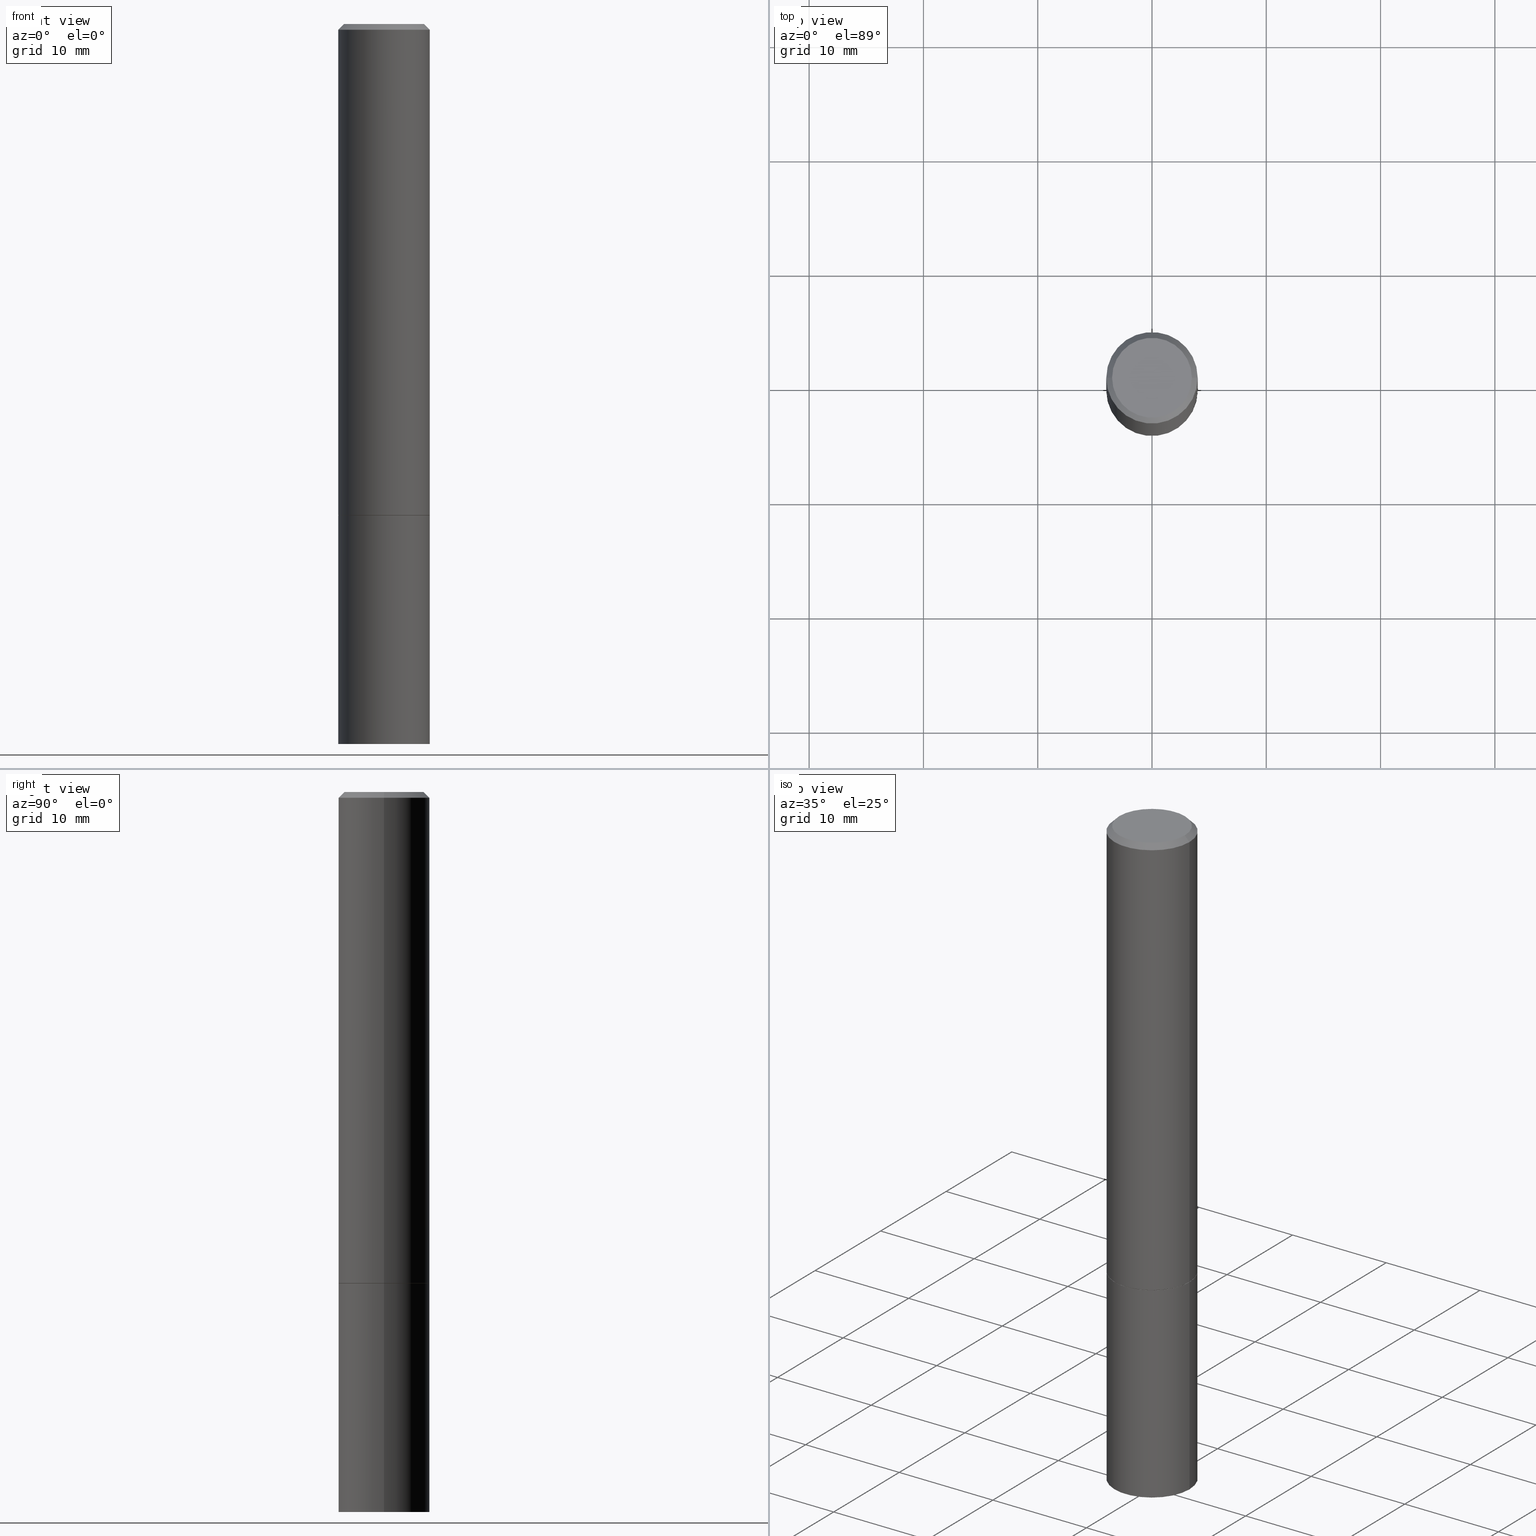
[diagram: canonical four-view strip — front | top / right | iso, engineering-drawing reading convention]
A machine part, canonical four-view strip (front | top / right | iso — engineering-drawing reading convention). The complete STEP part file that produces these views, byte-faithful:
ISO-10303-21;
HEADER;
FILE_DESCRIPTION (( 'STEP AP203' ),
    '1' );
FILE_NAME ('40149.STEP',
    '2024-02-28T01:34:43',
    ( '' ),
    ( '' ),
    'SwSTEP 2.0',
    'SolidWorks 2023',
    '' );
FILE_SCHEMA (( 'CONFIG_CONTROL_DESIGN' ));
ENDSEC;

DATA;
#1 = APPROVAL_STATUS ( 'not_yet_approved' ) ;
#2 = ORIENTED_EDGE ( 'NONE', *, *, #194, .T. ) ;
#3 = UNCERTAINTY_MEASURE_WITH_UNIT (LENGTH_MEASURE( 1.000000000000000082E-05 ), #204, 'distance_accuracy_value', 'NONE');
#4 = CALENDAR_DATE ( 2024, 27, 2 ) ;
#5 = CARTESIAN_POINT ( 'NONE',  ( 0.1575000000000000011, -1.099816621735586889E-15, 7.679978421878598033E-30 ) ) ;
#6 = VECTOR ( 'NONE', #268, 39.37007874015748143 ) ;
#7 = AXIS2_PLACEMENT_3D ( 'NONE', #323, #81, #192 ) ;
#8 = PRODUCT_DEFINITION ( 'UNKNOWN', '', #345, #91 ) ;
#9 = DIMENSIONAL_EXPONENTS ( 1.000000000000000000, 0.000000000000000000, 0.000000000000000000, 0.000000000000000000, 0.000000000000000000, 0.000000000000000000, 0.000000000000000000 ) ;
#10 = CARTESIAN_POINT ( 'NONE',  ( 4.139934141990818918E-29, -5.910728758527562653E-15, -1.692900000000000293 ) ) ;
#11 = CALENDAR_DATE ( 2024, 27, 2 ) ;
#12 = PLANE ( 'NONE',  #144 ) ;
#13 = PERSON_AND_ORGANIZATION_ROLE ( 'design_supplier' ) ;
#14 = EDGE_CURVE ( 'NONE', #90, #154, #68, .T. ) ;
#15 = DIRECTION ( 'NONE',  ( 1.000000000000000000, -6.982962677686267499E-15, 0.000000000000000000 ) ) ;
#16 = VECTOR ( 'NONE', #173, 39.37007874015748143 ) ;
#17 = CARTESIAN_POINT ( 'NONE',  ( 6.065496279980994755E-29, -8.659921164732655335E-15, -2.480300000000000171 ) ) ;
#18 = CARTESIAN_POINT ( 'NONE',  ( -0.1575000000000000011, -6.166220152807950602E-15, -2.480300000000000171 ) ) ;
#19 = ADVANCED_FACE ( 'NONE', ( #216 ), #242, .T. ) ;
#20 = DIRECTION ( 'NONE',  ( 1.000000000000000000, -6.982962677686268288E-15, 0.000000000000000000 ) ) ;
#21 = AXIS2_PLACEMENT_3D ( 'NONE', #22, #83, #171 ) ;
#22 = CARTESIAN_POINT ( 'NONE',  ( 4.890937612370275786E-31, -6.982962677686296539E-17, -0.02000000000000001429 ) ) ;
#23 = DIRECTION ( 'NONE',  ( 1.000000000000000000, -6.982962677686267499E-15, 0.000000000000000000 ) ) ;
#24 = DIRECTION ( 'NONE',  ( -2.445468806185136877E-29, 3.491481338843145188E-15, 1.000000000000000000 ) ) ;
#25 = CIRCLE ( 'NONE', #197, 0.1575000000000000011 ) ;
#26 =( NAMED_UNIT ( * ) SI_UNIT ( $, .STERADIAN. ) SOLID_ANGLE_UNIT ( ) );
#27 = CIRCLE ( 'NONE', #318, 0.1575000000000000011 ) ;
#28 = ORIENTED_EDGE ( 'NONE', *, *, #45, .T. ) ;
#29 = ORIENTED_EDGE ( 'NONE', *, *, #336, .T. ) ;
#30 = CC_DESIGN_PERSON_AND_ORGANIZATION_ASSIGNMENT ( #162, #13, ( #345 ) ) ;
#31 = DIRECTION ( 'NONE',  ( -2.445468806185136597E-29, 3.491481338843145583E-15, 1.000000000000000000 ) ) ;
#32 = VECTOR ( 'NONE', #106, 39.37007874015748143 ) ;
#33 = ORIENTED_EDGE ( 'NONE', *, *, #157, .T. ) ;
#34 = CIRCLE ( 'NONE', #140, 0.1565000000000000002 ) ;
#35 =( NAMED_UNIT ( * ) PLANE_ANGLE_UNIT ( ) SI_UNIT ( $, .RADIAN. ) );
#36 = ORIENTED_EDGE ( 'NONE', *, *, #266, .F. ) ;
#37 = COORDINATED_UNIVERSAL_TIME_OFFSET ( 5, 0, .BEHIND. ) ;
#38 = CARTESIAN_POINT ( 'NONE',  ( 0.000000000000000000, 0.000000000000000000, 0.000000000000000000 ) ) ;
#39 = EDGE_CURVE ( 'NONE', #175, #288, #79, .T. ) ;
#40 = APPLICATION_PROTOCOL_DEFINITION ( 'international standard', 'config_control_design', 1994, #254 ) ;
#41 = DIRECTION ( 'NONE',  ( -2.445468806185136597E-29, 3.491481338843145583E-15, 1.000000000000000000 ) ) ;
#42 = AXIS2_PLACEMENT_3D ( 'NONE', #130, #165, #319 ) ;
#43 = COORDINATED_UNIVERSAL_TIME_OFFSET ( 5, 0, .BEHIND. ) ;
#44 = DIRECTION ( 'NONE',  ( -1.000000000000000000, 6.982962677686265922E-15, -4.876176775795935793E-29 ) ) ;
#45 = EDGE_CURVE ( 'NONE', #259, #361, #107, .T. ) ;
#46 = DATE_TIME_ROLE ( 'creation_date' ) ;
#47 = DIRECTION ( 'NONE',  ( 2.438088387897960049E-29, -3.491481338843145188E-15, -1.000000000000000000 ) ) ;
#48 = MECHANICAL_CONTEXT ( 'NONE', #236, 'mechanical' ) ;
#49 = DIRECTION ( 'NONE',  ( -2.445468806185136597E-29, 3.491481338843145583E-15, 1.000000000000000000 ) ) ;
#50 = CONICAL_SURFACE ( 'NONE', #42, 0.1574999999999998346, 0.7853981633974477239 ) ;
#51 = LOCAL_TIME ( 20, 34, 43.00000000000000000, #269 ) ;
#52 = CARTESIAN_POINT ( 'NONE',  ( 4.139934141990818918E-29, -5.910728758527562653E-15, -1.692900000000000293 ) ) ;
#53 = EDGE_CURVE ( 'NONE', #259, #281, #25, .T. ) ;
#54 = CYLINDRICAL_SURFACE ( 'NONE', #70, 0.1574999999999998901 ) ;
#55 = APPROVAL_STATUS ( 'not_yet_approved' ) ;
#56 = CARTESIAN_POINT ( 'NONE',  ( 0.1575000000000000011, -7.010545380263150133E-15, -1.692900000000000293 ) ) ;
#57 = DIRECTION ( 'NONE',  ( 1.000000000000000000, -6.982962677686268288E-15, 0.000000000000000000 ) ) ;
#58 = EDGE_LOOP ( 'NONE', ( #255, #94, #284, #351 ) ) ;
#59 = ADVANCED_FACE ( 'NONE', ( #294 ), #265, .T. ) ;
#60 = CARTESIAN_POINT ( 'NONE',  ( 0.1574999999999998346, -1.150358061425877894E-15, -0.02000000000000001429 ) ) ;
#61 = ORIENTED_EDGE ( 'NONE', *, *, #170, .F. ) ;
#62 = AXIS2_PLACEMENT_3D ( 'NONE', #270, #47, #317 ) ;
#63 = CONICAL_SURFACE ( 'NONE', #286, 0.1565000000000000002, 0.7853981633972775267 ) ;
#64 = ORIENTED_EDGE ( 'NONE', *, *, #86, .F. ) ;
#65 = EDGE_CURVE ( 'NONE', #149, #154, #313, .T. ) ;
#66 = ORIENTED_EDGE ( 'NONE', *, *, #129, .F. ) ;
#67 = EDGE_LOOP ( 'NONE', ( #119, #258, #206, #61 ) ) ;
#68 = CIRCLE ( 'NONE', #220, 0.1575000000000000011 ) ;
#69 = EDGE_LOOP ( 'NONE', ( #282, #2 ) ) ;
#70 = AXIS2_PLACEMENT_3D ( 'NONE', #247, #85, #110 ) ;
#71 = ADVANCED_FACE ( 'NONE', ( #295 ), #357, .T. ) ;
#72 = PERSON_AND_ORGANIZATION ( #360, #151 ) ;
#73 = DIRECTION ( 'NONE',  ( 2.445468806185136597E-29, -3.491481338843145583E-15, -1.000000000000000000 ) ) ;
#74 = PERSON_AND_ORGANIZATION ( #360, #151 ) ;
#75 = PLANE ( 'NONE',  #166 ) ;
#76 = APPROVAL_ROLE ( '' ) ;
#77 = FACE_OUTER_BOUND ( 'NONE', #234, .T. ) ;
#78 = DATE_AND_TIME ( #11, #87 ) ;
#79 = LINE ( 'NONE', #186, #6 ) ;
#80 = DIRECTION ( 'NONE',  ( 1.000000000000000000, -6.982962677686265922E-15, 0.000000000000000000 ) ) ;
#81 = DIRECTION ( 'NONE',  ( -2.445468806185136597E-29, 3.491481338843145583E-15, 1.000000000000000000 ) ) ;
#82 = ADVANCED_FACE ( 'NONE', ( #322 ), #290, .T. ) ;
#83 = DIRECTION ( 'NONE',  ( -2.445468806185136597E-29, 3.491481338843145583E-15, 1.000000000000000000 ) ) ;
#84 = CYLINDRICAL_SURFACE ( 'NONE', #263, 0.1575000000000000011 ) ;
#85 = DIRECTION ( 'NONE',  ( -2.445468806185136597E-29, 3.491481338843145583E-15, 1.000000000000000000 ) ) ;
#86 = EDGE_CURVE ( 'NONE', #120, #175, #285, .T. ) ;
#87 = LOCAL_TIME ( 20, 34, 43.00000000000000000, #321 ) ;
#88 =( LENGTH_UNIT ( ) NAMED_UNIT ( * ) SI_UNIT ( $, .METRE. ) );
#89 = ADVANCED_FACE ( 'NONE', ( #211 ), #12, .F. ) ;
#90 = VERTEX_POINT ( 'NONE', #292 ) ;
#91 = DESIGN_CONTEXT ( 'detailed design', #254, 'design' ) ;
#92 = CIRCLE ( 'NONE', #188, 0.1565000000000000002 ) ;
#93 = ORIENTED_EDGE ( 'NONE', *, *, #108, .T. ) ;
#94 = ORIENTED_EDGE ( 'NONE', *, *, #218, .T. ) ;
#95 = EDGE_LOOP ( 'NONE', ( #66, #366 ) ) ;
#96 = PRODUCT_RELATED_PRODUCT_CATEGORY ( 'detail', '', ( #279 ) ) ;
#97 = EDGE_LOOP ( 'NONE', ( #332, #222 ) ) ;
#98 = LOCAL_TIME ( 20, 34, 43.00000000000000000, #37 ) ;
#99 = DIRECTION ( 'NONE',  ( 1.000000000000000000, 0.000000000000000000, 0.000000000000000000 ) ) ;
#100 = CARTESIAN_POINT ( 'NONE',  ( -0.1565000000000000002, -4.798729377063006057E-15, -1.692900000000000293 ) ) ;
#101 = ADVANCED_FACE ( 'NONE', ( #163 ), #329, .T. ) ;
#102 = CARTESIAN_POINT ( 'NONE',  ( 1.099816621735628304E-15, 0.1574999999999940892, -1.692900000000000960 ) ) ;
#103 = APPROVAL_DATE_TIME ( #291, #190 ) ;
#104 = DIRECTION ( 'NONE',  ( -2.445468806185136597E-29, 3.491481338843145583E-15, 1.000000000000000000 ) ) ;
#105 = CC_DESIGN_APPROVAL ( #174, ( #8 ) ) ;
#106 = DIRECTION ( 'NONE',  ( -0.7071067811864267805, 7.493145998869918709E-15, 0.7071067811866682540 ) ) ;
#107 = LINE ( 'NONE', #5, #150 ) ;
#108 = EDGE_CURVE ( 'NONE', #123, #288, #181, .T. ) ;
#109 = ADVANCED_BREP_SHAPE_REPRESENTATION ( '40149', ( #320, #215, #121 ), #276 ) ;
#110 = DIRECTION ( 'NONE',  ( 1.000000000000000000, -6.982962677686266711E-15, 4.876176775795935793E-29 ) ) ;
#111 = APPROVAL_PERSON_ORGANIZATION ( #185, #190, #316 ) ;
#112 = CARTESIAN_POINT ( 'NONE',  ( -0.1575000000000000011, 1.119104808822157801E-15, -7.747322767151475583E-30 ) ) ;
#113 = DIRECTION ( 'NONE',  ( 1.000000000000000000, -6.982962677686265922E-15, 4.876176775795935793E-29 ) ) ;
#114 = ADVANCED_FACE ( 'NONE', ( #77 ), #50, .T. ) ;
#115 = CARTESIAN_POINT ( 'NONE',  ( -0.1565000000000000002, -4.793430922714782866E-15, -1.692900000000000293 ) ) ;
#116 = AXIS2_PLACEMENT_3D ( 'NONE', #38, #137, #156 ) ;
#117 = LOCAL_TIME ( 20, 34, 43.00000000000000000, #43 ) ;
#118 = ADVANCED_FACE ( 'NONE', ( #243 ), #75, .F. ) ;
#119 = ORIENTED_EDGE ( 'NONE', *, *, #14, .T. ) ;
#120 = VERTEX_POINT ( 'NONE', #161 ) ;
#121 = AXIS2_PLACEMENT_3D ( 'NONE', #127, #267, #99 ) ;
#122 = VERTEX_POINT ( 'NONE', #133 ) ;
#123 = VERTEX_POINT ( 'NONE', #240 ) ;
#124 = APPROVAL ( #55, 'UNSPECIFIED' ) ;
#125 = APPROVAL_DATE_TIME ( #343, #174 ) ;
#126 = ORIENTED_EDGE ( 'NONE', *, *, #65, .T. ) ;
#127 = CARTESIAN_POINT ( 'NONE',  ( 0.000000000000000000, 0.000000000000000000, 0.000000000000000000 ) ) ;
#128 = CARTESIAN_POINT ( 'NONE',  ( 4.890937612370275786E-31, -6.982962677686296539E-17, -0.02000000000000001429 ) ) ;
#129 = EDGE_CURVE ( 'NONE', #148, #149, #92, .T. ) ;
#130 = CARTESIAN_POINT ( 'NONE',  ( 4.890937612370275786E-31, -6.982962677686296539E-17, -0.02000000000000001429 ) ) ;
#131 = SHAPE_DEFINITION_REPRESENTATION ( #226, #109 ) ;
#132 = APPROVAL_STATUS ( 'not_yet_approved' ) ;
#133 = CARTESIAN_POINT ( 'NONE',  ( -0.1575000000000000011, -6.166220152807950602E-15, -1.692900000000000293 ) ) ;
#134 = SECURITY_CLASSIFICATION_LEVEL ( 'unclassified' ) ;
#135 = CARTESIAN_POINT ( 'NONE',  ( 4.890937612370275786E-31, -6.982962677686296539E-17, -0.02000000000000001429 ) ) ;
#136 = VECTOR ( 'NONE', #24, 39.37007874015748143 ) ;
#137 = DIRECTION ( 'NONE',  ( -2.445468806185136597E-29, 3.491481338843145583E-15, 1.000000000000000000 ) ) ;
#138 = DIRECTION ( 'NONE',  ( -2.445468806185136597E-29, 3.491481338843145583E-15, 1.000000000000000000 ) ) ;
#139 = DIRECTION ( 'NONE',  ( 1.000000000000000000, -6.982962677686261977E-15, 0.000000000000000000 ) ) ;
#140 = AXIS2_PLACEMENT_3D ( 'NONE', #52, #138, #168 ) ;
#141 = FACE_OUTER_BOUND ( 'NONE', #95, .T. ) ;
#142 = DIRECTION ( 'NONE',  ( -2.445468806185136597E-29, 3.491481338843145583E-15, 1.000000000000000000 ) ) ;
#143 = CARTESIAN_POINT ( 'NONE',  ( -0.1574999999999998901, 1.119104808822157012E-15, -7.747322767151471379E-30 ) ) ;
#144 = AXIS2_PLACEMENT_3D ( 'NONE', #102, #235, #212 ) ;
#145 = CC_DESIGN_SECURITY_CLASSIFICATION ( #354, ( #345 ) ) ;
#146 = ORIENTED_EDGE ( 'NONE', *, *, #45, .F. ) ;
#147 = EDGE_CURVE ( 'NONE', #148, #90, #297, .T. ) ;
#148 = VERTEX_POINT ( 'NONE', #250 ) ;
#149 = VERTEX_POINT ( 'NONE', #115 ) ;
#150 = VECTOR ( 'NONE', #262, 39.37007874015748143 ) ;
#151 = ORGANIZATION ( 'UNSPECIFIED', 'UNSPECIFIED', '' ) ;
#152 = EDGE_CURVE ( 'NONE', #120, #123, #172, .T. ) ;
#153 = EDGE_LOOP ( 'NONE', ( #228, #177, #200, #363 ) ) ;
#154 = VERTEX_POINT ( 'NONE', #275 ) ;
#155 = DATE_TIME_ROLE ( 'classification_date' ) ;
#156 = DIRECTION ( 'NONE',  ( 1.000000000000000000, -6.982962677686265922E-15, 4.876176775795935232E-29 ) ) ;
#157 = EDGE_CURVE ( 'NONE', #281, #259, #27, .T. ) ;
#158 = AXIS2_PLACEMENT_3D ( 'NONE', #214, #41, #342 ) ;
#159 = DIRECTION ( 'NONE',  ( -2.445468806185136597E-29, 3.491481338843145583E-15, 1.000000000000000000 ) ) ;
#160 = PERSON_AND_ORGANIZATION ( #360, #151 ) ;
#161 = CARTESIAN_POINT ( 'NONE',  ( -0.1374999999999998446, 9.950721815702915469E-16, 4.268512490093574228E-18 ) ) ;
#162 = PERSON_AND_ORGANIZATION ( #360, #151 ) ;
#163 = FACE_OUTER_BOUND ( 'NONE', #202, .T. ) ;
#164 = CC_DESIGN_PERSON_AND_ORGANIZATION_ASSIGNMENT ( #261, #289, ( #354 ) ) ;
#165 = DIRECTION ( 'NONE',  ( 2.445468806185136597E-29, -3.491481338843145583E-15, -1.000000000000000000 ) ) ;
#166 = AXIS2_PLACEMENT_3D ( 'NONE', #191, #341, #44 ) ;
#167 = APPROVAL_PERSON_ORGANIZATION ( #264, #124, #225 ) ;
#168 = DIRECTION ( 'NONE',  ( 1.000000000000000000, -6.982962677686267499E-15, 0.000000000000000000 ) ) ;
#169 = CARTESIAN_POINT ( 'NONE',  ( 0.1575000000000000011, -9.759737786468242027E-15, -2.480300000000000171 ) ) ;
#170 = EDGE_CURVE ( 'NONE', #90, #288, #358, .T. ) ;
#171 = DIRECTION ( 'NONE',  ( 1.000000000000000000, -6.982962677686265922E-15, 0.000000000000000000 ) ) ;
#172 = LINE ( 'NONE', #245, #365 ) ;
#173 = DIRECTION ( 'NONE',  ( 0.7071067811864267805, -2.468850131080992517E-15, 0.7071067811866682540 ) ) ;
#174 = APPROVAL ( #1, 'UNSPECIFIED' ) ;
#175 = VERTEX_POINT ( 'NONE', #303 ) ;
#176 = CLOSED_SHELL ( 'NONE', ( #227, #59, #89, #82 ) ) ;
#177 = ORIENTED_EDGE ( 'NONE', *, *, #239, .T. ) ;
#178 = ORIENTED_EDGE ( 'NONE', *, *, #339, .T. ) ;
#179 = EDGE_CURVE ( 'NONE', #154, #123, #193, .T. ) ;
#180 = ORIENTED_EDGE ( 'NONE', *, *, #53, .F. ) ;
#181 = CIRCLE ( 'NONE', #201, 0.1574999999999998346 ) ;
#182 = ORIENTED_EDGE ( 'NONE', *, *, #147, .F. ) ;
#183 = PERSON_AND_ORGANIZATION_ROLE ( 'creator' ) ;
#184 = DIRECTION ( 'NONE',  ( -1.000000000000000000, 6.982962677686265922E-15, 0.000000000000000000 ) ) ;
#185 = PERSON_AND_ORGANIZATION ( #360, #151 ) ;
#186 = CARTESIAN_POINT ( 'NONE',  ( 0.1574999999999998346, -1.150358061425877894E-15, -0.02000000000000001429 ) ) ;
#187 = CARTESIAN_POINT ( 'NONE',  ( 0.000000000000000000, 0.000000000000000000, 0.000000000000000000 ) ) ;
#188 = AXIS2_PLACEMENT_3D ( 'NONE', #344, #104, #189 ) ;
#189 = DIRECTION ( 'NONE',  ( 1.000000000000000000, -6.982962677686267499E-15, 0.000000000000000000 ) ) ;
#190 = APPROVAL ( #132, 'UNSPECIFIED' ) ;
#191 = CARTESIAN_POINT ( 'NONE',  ( 9.601573681818602922E-16, 0.1374999999999998446, -4.779444278458817077E-16 ) ) ;
#192 = DIRECTION ( 'NONE',  ( 1.000000000000000000, -6.982962677686268288E-15, 0.000000000000000000 ) ) ;
#193 = LINE ( 'NONE', #143, #364 ) ;
#194 = EDGE_CURVE ( 'NONE', #122, #361, #331, .T. ) ;
#195 = CARTESIAN_POINT ( 'NONE',  ( 0.1574999999999998901, -1.099816621735586297E-15, 7.679978421878593829E-30 ) ) ;
#196 = CARTESIAN_POINT ( 'NONE',  ( 4.139934141990818918E-29, -5.910728758527562653E-15, -1.692900000000000293 ) ) ;
#197 = AXIS2_PLACEMENT_3D ( 'NONE', #17, #347, #237 ) ;
#198 = CIRCLE ( 'NONE', #7, 0.1575000000000000011 ) ;
#199 = CARTESIAN_POINT ( 'NONE',  ( 4.139934141990818918E-29, -5.910728758527562653E-15, -1.692900000000000293 ) ) ;
#200 = ORIENTED_EDGE ( 'NONE', *, *, #147, .T. ) ;
#201 = AXIS2_PLACEMENT_3D ( 'NONE', #135, #315, #80 ) ;
#202 = EDGE_LOOP ( 'NONE', ( #229, #126, #311, #182 ) ) ;
#203 = CC_DESIGN_PERSON_AND_ORGANIZATION_ASSIGNMENT ( #72, #183, ( #345 ) ) ;
#204 =( CONVERSION_BASED_UNIT ( 'INCH', #362 ) LENGTH_UNIT ( ) NAMED_UNIT ( #9 ) );
#205 = ORIENTED_EDGE ( 'NONE', *, *, #314, .F. ) ;
#206 = ORIENTED_EDGE ( 'NONE', *, *, #339, .F. ) ;
#207 = AXIS2_PLACEMENT_3D ( 'NONE', #187, #159, #349 ) ;
#208 = LOCAL_TIME ( 20, 34, 43.00000000000000000, #277 ) ;
#209 = ORIENTED_EDGE ( 'NONE', *, *, #152, .F. ) ;
#210 = DATE_AND_TIME ( #4, #98 ) ;
#211 = FACE_OUTER_BOUND ( 'NONE', #69, .T. ) ;
#212 = DIRECTION ( 'NONE',  ( -1.000000000000000000, 6.982962677686265922E-15, -4.876176775795935793E-29 ) ) ;
#213 = AXIS2_PLACEMENT_3D ( 'NONE', #272, #330, #224 ) ;
#214 = CARTESIAN_POINT ( 'NONE',  ( -1.043851414335219820E-46, 1.490343170380447200E-32, 4.268512490100411279E-18 ) ) ;
#215 = MANIFOLD_SOLID_BREP ( 'Body-Move/Copy2[2]', #324 ) ;
#216 = FACE_OUTER_BOUND ( 'NONE', #67, .T. ) ;
#217 = DIRECTION ( 'NONE',  ( -2.445468806185136877E-29, 3.491481338843145188E-15, 1.000000000000000000 ) ) ;
#218 = EDGE_CURVE ( 'NONE', #154, #90, #198, .T. ) ;
#219 = LINE ( 'NONE', #112, #251 ) ;
#220 = AXIS2_PLACEMENT_3D ( 'NONE', #283, #31, #256 ) ;
#221 = AXIS2_PLACEMENT_3D ( 'NONE', #355, #328, #113 ) ;
#222 = ORIENTED_EDGE ( 'NONE', *, *, #266, .T. ) ;
#223 = DIRECTION ( 'NONE',  ( -2.445468806185136597E-29, 3.491481338843145583E-15, 1.000000000000000000 ) ) ;
#224 = DIRECTION ( 'NONE',  ( 1.000000000000000000, -6.982962677686265922E-15, 4.876173381029105647E-29 ) ) ;
#225 = APPROVAL_ROLE ( '' ) ;
#226 = PRODUCT_DEFINITION_SHAPE ( 'NONE', 'NONE',  #8 ) ;
#227 = ADVANCED_FACE ( 'NONE', ( #300 ), #84, .T. ) ;
#228 = ORIENTED_EDGE ( 'NONE', *, *, #65, .F. ) ;
#229 = ORIENTED_EDGE ( 'NONE', *, *, #129, .T. ) ;
#230 = CIRCLE ( 'NONE', #213, 0.1374999999999998446 ) ;
#231 = EDGE_LOOP ( 'NONE', ( #180, #337 ) ) ;
#232 = ORIENTED_EDGE ( 'NONE', *, *, #53, .T. ) ;
#233 = PERSON_AND_ORGANIZATION_ROLE ( 'design_owner' ) ;
#234 = EDGE_LOOP ( 'NONE', ( #36, #359, #178, #209 ) ) ;
#235 = DIRECTION ( 'NONE',  ( 2.438088387897960049E-29, -3.491481338843145188E-15, -1.000000000000000000 ) ) ;
#236 = APPLICATION_CONTEXT ( 'configuration controlled 3d designs of mechanical parts and assemblies' ) ;
#237 = DIRECTION ( 'NONE',  ( 1.000000000000000000, -6.982962677686261977E-15, 0.000000000000000000 ) ) ;
#238 = CALENDAR_DATE ( 2024, 27, 2 ) ;
#239 = EDGE_CURVE ( 'NONE', #149, #148, #34, .T. ) ;
#240 = CARTESIAN_POINT ( 'NONE',  ( -0.1574999999999998346, 1.029986994958722802E-15, -0.02000000000000001429 ) ) ;
#241 = AXIS2_PLACEMENT_3D ( 'NONE', #128, #73, #184 ) ;
#242 = CYLINDRICAL_SURFACE ( 'NONE', #207, 0.1574999999999998901 ) ;
#243 = FACE_OUTER_BOUND ( 'NONE', #97, .T. ) ;
#244 = CARTESIAN_POINT ( 'NONE',  ( 4.139934141990818918E-29, -5.910728758527562653E-15, -1.692900000000000293 ) ) ;
#245 = CARTESIAN_POINT ( 'NONE',  ( -0.1574999999999998346, 1.029986994958722802E-15, -0.02000000000000001429 ) ) ;
#246 = CIRCLE ( 'NONE', #304, 0.1575000000000000011 ) ;
#247 = CARTESIAN_POINT ( 'NONE',  ( 0.000000000000000000, 0.000000000000000000, 0.000000000000000000 ) ) ;
#248 = PLANE ( 'NONE',  #221 ) ;
#249 = CC_DESIGN_DATE_AND_TIME_ASSIGNMENT ( #78, #46, ( #8 ) ) ;
#250 = CARTESIAN_POINT ( 'NONE',  ( 0.1565000000000000002, -7.003562417585463330E-15, -1.692900000000000293 ) ) ;
#251 = VECTOR ( 'NONE', #326, 39.37007874015748143 ) ;
#252 = EDGE_LOOP ( 'NONE', ( #308, #64, #306, #93 ) ) ;
#253 = ADVANCED_FACE ( 'NONE', ( #141 ), #248, .F. ) ;
#254 = APPLICATION_CONTEXT ( 'configuration controlled 3d designs of mechanical parts and assemblies' ) ;
#255 = ORIENTED_EDGE ( 'NONE', *, *, #179, .F. ) ;
#256 = DIRECTION ( 'NONE',  ( 1.000000000000000000, -6.982962677686268288E-15, 0.000000000000000000 ) ) ;
#257 = APPROVAL_PERSON_ORGANIZATION ( #160, #174, #76 ) ;
#258 = ORIENTED_EDGE ( 'NONE', *, *, #179, .T. ) ;
#259 = VERTEX_POINT ( 'NONE', #169 ) ;
#260 = APPROVAL_DATE_TIME ( #273, #124 ) ;
#261 = PERSON_AND_ORGANIZATION ( #360, #151 ) ;
#262 = DIRECTION ( 'NONE',  ( -2.445468806185136877E-29, 3.491481338843145188E-15, 1.000000000000000000 ) ) ;
#263 = AXIS2_PLACEMENT_3D ( 'NONE', #327, #302, #278 ) ;
#264 = PERSON_AND_ORGANIZATION ( #360, #151 ) ;
#265 = PLANE ( 'NONE',  #62 ) ;
#266 = EDGE_CURVE ( 'NONE', #175, #120, #230, .T. ) ;
#267 = DIRECTION ( 'NONE',  ( 0.000000000000000000, 0.000000000000000000, 1.000000000000000000 ) ) ;
#268 = DIRECTION ( 'NONE',  ( 0.7071067811865471286, -7.319954787623254468E-15, -0.7071067811865479058 ) ) ;
#269 = COORDINATED_UNIVERSAL_TIME_OFFSET ( 5, 0, .BEHIND. ) ;
#270 = CARTESIAN_POINT ( 'NONE',  ( 1.099816621735647434E-15, 0.1574999999999913136, -2.480300000000001059 ) ) ;
#271 = CARTESIAN_POINT ( 'NONE',  ( 0.1565000000000000002, -7.003562417585463330E-15, -1.692900000000000293 ) ) ;
#272 = CARTESIAN_POINT ( 'NONE',  ( -1.043851414335219820E-46, 1.490343170380447200E-32, 4.268512490100411279E-18 ) ) ;
#273 = DATE_AND_TIME ( #325, #208 ) ;
#274 = FACE_OUTER_BOUND ( 'NONE', #58, .T. ) ;
#275 = CARTESIAN_POINT ( 'NONE',  ( -0.1575000000000000011, -1.869428643160630319E-15, -1.691899999999999959 ) ) ;
#276 =( GEOMETRIC_REPRESENTATION_CONTEXT ( 3 ) GLOBAL_UNCERTAINTY_ASSIGNED_CONTEXT ( ( #3 ) ) GLOBAL_UNIT_ASSIGNED_CONTEXT ( ( #204, #35, #26 ) ) REPRESENTATION_CONTEXT ( 'NONE', 'WORKASPACE' ) );
#277 = COORDINATED_UNIVERSAL_TIME_OFFSET ( 5, 0, .BEHIND. ) ;
#278 = DIRECTION ( 'NONE',  ( 1.000000000000000000, -6.982962677686265922E-15, 4.876176775795935232E-29 ) ) ;
#279 = PRODUCT ( '40149', '40149', '', ( #48 ) ) ;
#280 = CARTESIAN_POINT ( 'NONE',  ( 6.065496279980994755E-29, -8.659921164732655335E-15, -2.480300000000000171 ) ) ;
#281 = VERTEX_POINT ( 'NONE', #18 ) ;
#282 = ORIENTED_EDGE ( 'NONE', *, *, #314, .T. ) ;
#283 = CARTESIAN_POINT ( 'NONE',  ( 4.137488673184632754E-29, -5.907237277188718068E-15, -1.691899999999999959 ) ) ;
#284 = ORIENTED_EDGE ( 'NONE', *, *, #170, .T. ) ;
#285 = CIRCLE ( 'NONE', #158, 0.1374999999999998446 ) ;
#286 = AXIS2_PLACEMENT_3D ( 'NONE', #196, #223, #23 ) ;
#287 = ADVANCED_FACE ( 'NONE', ( #274 ), #54, .T. ) ;
#288 = VERTEX_POINT ( 'NONE', #60 ) ;
#289 = PERSON_AND_ORGANIZATION_ROLE ( 'classification_officer' ) ;
#290 = CYLINDRICAL_SURFACE ( 'NONE', #116, 0.1575000000000000011 ) ;
#291 = DATE_AND_TIME ( #238, #117 ) ;
#292 = CARTESIAN_POINT ( 'NONE',  ( 0.1575000000000000011, -7.007053898924305548E-15, -1.691899999999999959 ) ) ;
#293 = CIRCLE ( 'NONE', #21, 0.1574999999999998346 ) ;
#294 = FACE_OUTER_BOUND ( 'NONE', #231, .T. ) ;
#295 = FACE_OUTER_BOUND ( 'NONE', #252, .T. ) ;
#296 = PERSON_AND_ORGANIZATION ( #360, #151 ) ;
#297 = LINE ( 'NONE', #271, #16 ) ;
#298 = CC_DESIGN_APPROVAL ( #124, ( #354 ) ) ;
#299 = CC_DESIGN_PERSON_AND_ORGANIZATION_ASSIGNMENT ( #296, #346, ( #8 ) ) ;
#300 = FACE_OUTER_BOUND ( 'NONE', #333, .T. ) ;
#301 = FACE_OUTER_BOUND ( 'NONE', #153, .T. ) ;
#302 = DIRECTION ( 'NONE',  ( -2.445468806185136597E-29, 3.491481338843145583E-15, 1.000000000000000000 ) ) ;
#303 = CARTESIAN_POINT ( 'NONE',  ( 0.1374999999999998446, -1.046838268059731308E-15, 4.268512490107428597E-18 ) ) ;
#304 = AXIS2_PLACEMENT_3D ( 'NONE', #244, #350, #20 ) ;
#305 = DIRECTION ( 'NONE',  ( -2.445468806185136597E-29, 3.491481338843145583E-15, 1.000000000000000000 ) ) ;
#306 = ORIENTED_EDGE ( 'NONE', *, *, #152, .T. ) ;
#307 = CC_DESIGN_APPROVAL ( #190, ( #345 ) ) ;
#308 = ORIENTED_EDGE ( 'NONE', *, *, #39, .F. ) ;
#309 = ORIENTED_EDGE ( 'NONE', *, *, #336, .F. ) ;
#310 = CC_DESIGN_PERSON_AND_ORGANIZATION_ASSIGNMENT ( #74, #233, ( #279 ) ) ;
#311 = ORIENTED_EDGE ( 'NONE', *, *, #14, .F. ) ;
#312 = APPLICATION_PROTOCOL_DEFINITION ( 'international standard', 'config_control_design', 1994, #236 ) ;
#313 = LINE ( 'NONE', #100, #32 ) ;
#314 = EDGE_CURVE ( 'NONE', #361, #122, #246, .T. ) ;
#315 = DIRECTION ( 'NONE',  ( -2.445468806185136597E-29, 3.491481338843145583E-15, 1.000000000000000000 ) ) ;
#316 = APPROVAL_ROLE ( '' ) ;
#317 = DIRECTION ( 'NONE',  ( -1.000000000000000000, 6.982962677686265922E-15, -4.876176775795935793E-29 ) ) ;
#318 = AXIS2_PLACEMENT_3D ( 'NONE', #280, #142, #139 ) ;
#319 = DIRECTION ( 'NONE',  ( -1.000000000000000000, 6.982962677686265922E-15, 0.000000000000000000 ) ) ;
#320 = MANIFOLD_SOLID_BREP ( 'Body-Move/Copy2[1]', #176 ) ;
#321 = COORDINATED_UNIVERSAL_TIME_OFFSET ( 5, 0, .BEHIND. ) ;
#322 = FACE_OUTER_BOUND ( 'NONE', #335, .T. ) ;
#323 = CARTESIAN_POINT ( 'NONE',  ( 4.137488673184632754E-29, -5.907237277188718068E-15, -1.691899999999999959 ) ) ;
#324 = CLOSED_SHELL ( 'NONE', ( #101, #19, #114, #71, #287, #348, #253, #118 ) ) ;
#325 = CALENDAR_DATE ( 2024, 27, 2 ) ;
#326 = DIRECTION ( 'NONE',  ( -2.445468806185136877E-29, 3.491481338843145188E-15, 1.000000000000000000 ) ) ;
#327 = CARTESIAN_POINT ( 'NONE',  ( 0.000000000000000000, 0.000000000000000000, 0.000000000000000000 ) ) ;
#328 = DIRECTION ( 'NONE',  ( -2.438088387897960049E-29, 3.491481338843145188E-15, 1.000000000000000000 ) ) ;
#329 = CONICAL_SURFACE ( 'NONE', #352, 0.1565000000000000002, 0.7853981633972775267 ) ;
#330 = DIRECTION ( 'NONE',  ( -2.445468806185136597E-29, 3.491481338843145583E-15, 1.000000000000000000 ) ) ;
#331 = CIRCLE ( 'NONE', #334, 0.1575000000000000011 ) ;
#332 = ORIENTED_EDGE ( 'NONE', *, *, #86, .T. ) ;
#333 = EDGE_LOOP ( 'NONE', ( #232, #29, #205, #146 ) ) ;
#334 = AXIS2_PLACEMENT_3D ( 'NONE', #199, #305, #57 ) ;
#335 = EDGE_LOOP ( 'NONE', ( #309, #33, #28, #338 ) ) ;
#336 = EDGE_CURVE ( 'NONE', #281, #122, #219, .T. ) ;
#337 = ORIENTED_EDGE ( 'NONE', *, *, #157, .F. ) ;
#338 = ORIENTED_EDGE ( 'NONE', *, *, #194, .F. ) ;
#339 = EDGE_CURVE ( 'NONE', #288, #123, #293, .T. ) ;
#340 = CALENDAR_DATE ( 2024, 27, 2 ) ;
#341 = DIRECTION ( 'NONE',  ( 2.438088387897960049E-29, -3.491481338843145188E-15, -1.000000000000000000 ) ) ;
#342 = DIRECTION ( 'NONE',  ( 1.000000000000000000, -6.982962677686265922E-15, 4.876173381029105647E-29 ) ) ;
#343 = DATE_AND_TIME ( #340, #51 ) ;
#344 = CARTESIAN_POINT ( 'NONE',  ( 4.139934141990818918E-29, -5.910728758527562653E-15, -1.692900000000000293 ) ) ;
#345 = PRODUCT_DEFINITION_FORMATION_WITH_SPECIFIED_SOURCE ( 'ANY', '', #279, .NOT_KNOWN. ) ;
#346 = PERSON_AND_ORGANIZATION_ROLE ( 'creator' ) ;
#347 = DIRECTION ( 'NONE',  ( -2.445468806185136597E-29, 3.491481338843145583E-15, 1.000000000000000000 ) ) ;
#348 = ADVANCED_FACE ( 'NONE', ( #301 ), #63, .T. ) ;
#349 = DIRECTION ( 'NONE',  ( 1.000000000000000000, -6.982962677686266711E-15, 4.876176775795935793E-29 ) ) ;
#350 = DIRECTION ( 'NONE',  ( -2.445468806185136597E-29, 3.491481338843145583E-15, 1.000000000000000000 ) ) ;
#351 = ORIENTED_EDGE ( 'NONE', *, *, #108, .F. ) ;
#352 = AXIS2_PLACEMENT_3D ( 'NONE', #10, #49, #15 ) ;
#353 = CC_DESIGN_DATE_AND_TIME_ASSIGNMENT ( #210, #155, ( #354 ) ) ;
#354 = SECURITY_CLASSIFICATION ( '', '', #134 ) ;
#355 = CARTESIAN_POINT ( 'NONE',  ( 4.139934141990818918E-29, -5.910728758527562653E-15, -1.692900000000000293 ) ) ;
#356 = DIRECTION ( 'NONE',  ( -0.7071067811865471286, 2.468850131082252722E-15, -0.7071067811865479058 ) ) ;
#357 = CONICAL_SURFACE ( 'NONE', #241, 0.1574999999999998346, 0.7853981633974477239 ) ;
#358 = LINE ( 'NONE', #195, #136 ) ;
#359 = ORIENTED_EDGE ( 'NONE', *, *, #39, .T. ) ;
#360 = PERSON ( 'UNSPECIFIED', 'UNSPECIFIED', 'UNSPECIFIED', ('UNSPECIFIED'), ('UNSPECIFIED'), ('UNSPECIFIED') ) ;
#361 = VERTEX_POINT ( 'NONE', #56 ) ;
#362 = LENGTH_MEASURE_WITH_UNIT ( LENGTH_MEASURE( 0.02539999999999999897 ), #88 );
#363 = ORIENTED_EDGE ( 'NONE', *, *, #218, .F. ) ;
#364 = VECTOR ( 'NONE', #217, 39.37007874015748143 ) ;
#365 = VECTOR ( 'NONE', #356, 39.37007874015748143 ) ;
#366 = ORIENTED_EDGE ( 'NONE', *, *, #239, .F. ) ;
ENDSEC;
END-ISO-10303-21;
